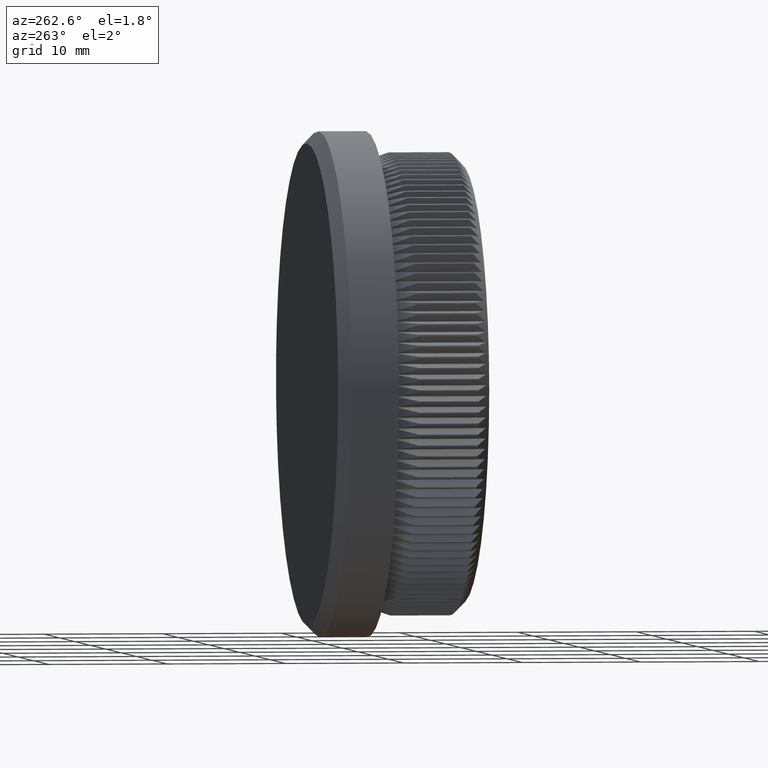
[diagram: clean part render]
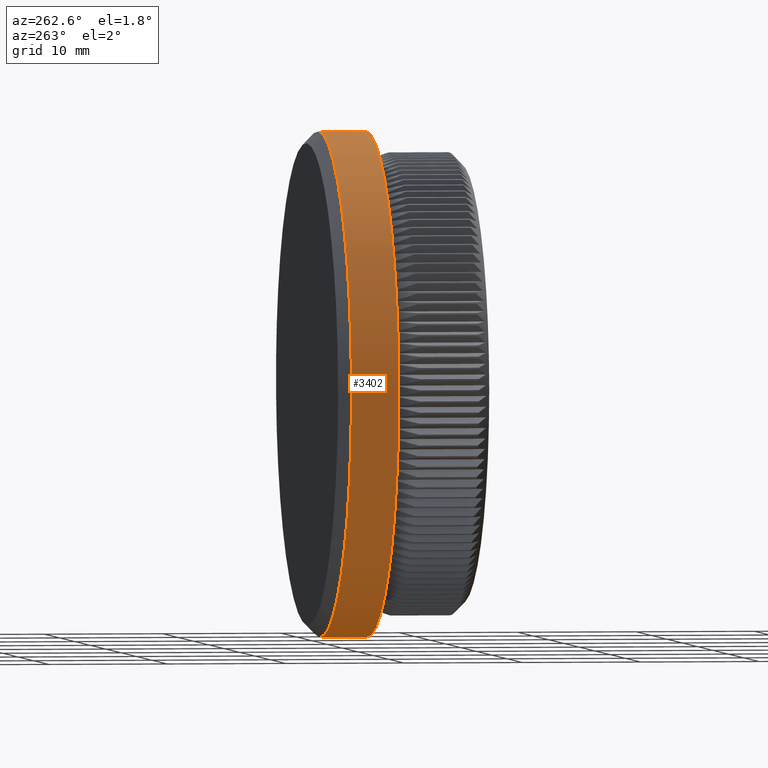
[diagram: same view with one face highlighted and labeled with its STEP entity id]
A machine part, auxiliary view. The second image highlights one B-rep face of the part: STEP entity #3402.
In plain terms, the highlighted cylindrical surface (partial cylindrical patch) has radius 21.2 mm, axis along (-0, -1, -0).
Its self-contained STEP definition (entity closure, byte-faithful):
#2077 = EDGE_CURVE ( 'NONE', #29770, #28527, #7251, .T. ) ;
#2102 = CARTESIAN_POINT ( 'NONE',  ( 0.0000000000000000000, 0.0000000000000000000, 0.0000000000000000000 ) ) ;
#3215 = FACE_OUTER_BOUND ( 'NONE', #9475, .T. ) ;
#3335 = ORIENTED_EDGE ( 'NONE', *, *, #28831, .F. ) ;
#3402 = ADVANCED_FACE ( 'NONE', ( #3215 ), #18471, .T. ) ;
#4020 = EDGE_CURVE ( 'NONE', #27978, #28527, #23919, .T. ) ;
#4374 = ORIENTED_EDGE ( 'NONE', *, *, #6796, .T. ) ;
#4796 = DIRECTION ( 'NONE',  ( -0.0000000000000000000, -1.000000000000000000, -0.0000000000000000000 ) ) ;
#5313 = DIRECTION ( 'NONE',  ( 0.0000000000000000000, 0.0000000000000000000, -1.000000000000000000 ) ) ;
#6325 = DIRECTION ( 'NONE',  ( -0.0000000000000000000, -1.000000000000000000, -0.0000000000000000000 ) ) ;
#6715 = CARTESIAN_POINT ( 'NONE',  ( 0.0000000000000000000, 0.0000000000000000000, -21.19999999999999900 ) ) ;
#6796 = EDGE_CURVE ( 'NONE', #21735, #29770, #14505, .T. ) ;
#7191 = LINE ( 'NONE', #18909, #23207 ) ;
#7251 = LINE ( 'NONE', #6715, #25465 ) ;
#8936 = DIRECTION ( 'NONE',  ( 0.0000000000000000000, 0.0000000000000000000, 1.000000000000000000 ) ) ;
#9475 = EDGE_LOOP ( 'NONE', ( #3335, #4374, #26224, #11153 ) ) ;
#9783 = CARTESIAN_POINT ( 'NONE',  ( 0.0000000000000000000, 11.99999999999999800, -21.19999999999999900 ) ) ;
#11153 = ORIENTED_EDGE ( 'NONE', *, *, #4020, .F. ) ;
#14504 = AXIS2_PLACEMENT_3D ( 'NONE', #19025, #26394, #5313 ) ;
#14505 = CIRCLE ( 'NONE', #14722, 21.19999999999999900 ) ;
#14722 = AXIS2_PLACEMENT_3D ( 'NONE', #27703, #22871, #8936 ) ;
#15051 = CARTESIAN_POINT ( 'NONE',  ( 2.596251214192388800E-015, 11.99999999999999800, 21.19999999999999900 ) ) ;
#15917 = DIRECTION ( 'NONE',  ( -0.0000000000000000000, -1.000000000000000000, -0.0000000000000000000 ) ) ;
#18471 = CYLINDRICAL_SURFACE ( 'NONE', #26232, 21.19999999999999900 ) ;
#18909 = CARTESIAN_POINT ( 'NONE',  ( 2.596251214192388800E-015, 0.0000000000000000000, 21.19999999999999900 ) ) ;
#19025 = CARTESIAN_POINT ( 'NONE',  ( 0.0000000000000000000, 8.000000000000000000, 0.0000000000000000000 ) ) ;
#21668 = CARTESIAN_POINT ( 'NONE',  ( 0.0000000000000000000, 8.000000000000000000, -21.19999999999999900 ) ) ;
#21735 = VERTEX_POINT ( 'NONE', #15051 ) ;
#22620 = CARTESIAN_POINT ( 'NONE',  ( 2.596251214192388800E-015, 8.000000000000000000, 21.19999999999999900 ) ) ;
#22871 = DIRECTION ( 'NONE',  ( -0.0000000000000000000, -1.000000000000000000, -0.0000000000000000000 ) ) ;
#23207 = VECTOR ( 'NONE', #4796, 1000.000000000000000 ) ;
#23919 = CIRCLE ( 'NONE', #14504, 21.19999999999999900 ) ;
#25465 = VECTOR ( 'NONE', #6325, 1000.000000000000000 ) ;
#26224 = ORIENTED_EDGE ( 'NONE', *, *, #2077, .T. ) ;
#26232 = AXIS2_PLACEMENT_3D ( 'NONE', #2102, #15917, #27471 ) ;
#26394 = DIRECTION ( 'NONE',  ( -0.0000000000000000000, -1.000000000000000000, -0.0000000000000000000 ) ) ;
#27471 = DIRECTION ( 'NONE',  ( 0.0000000000000000000, 0.0000000000000000000, -1.000000000000000000 ) ) ;
#27703 = CARTESIAN_POINT ( 'NONE',  ( 0.0000000000000000000, 11.99999999999999800, 0.0000000000000000000 ) ) ;
#27978 = VERTEX_POINT ( 'NONE', #22620 ) ;
#28527 = VERTEX_POINT ( 'NONE', #21668 ) ;
#28831 = EDGE_CURVE ( 'NONE', #21735, #27978, #7191, .T. ) ;
#29770 = VERTEX_POINT ( 'NONE', #9783 ) ;